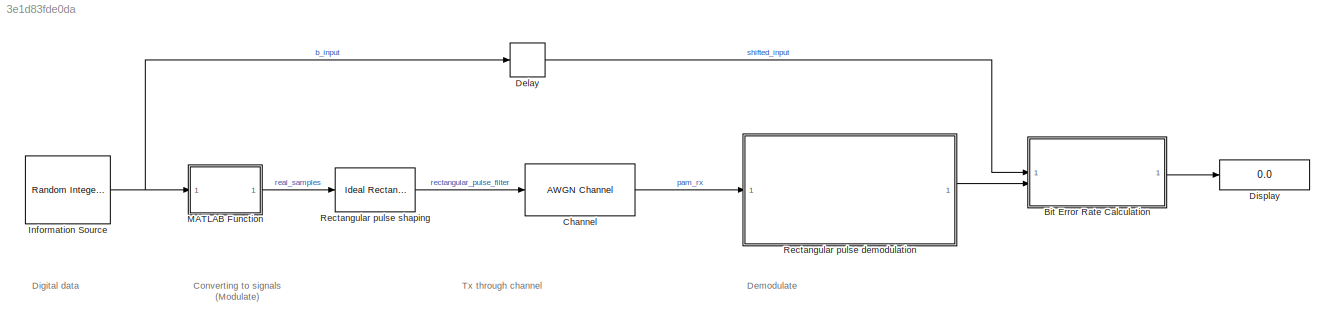
MODEL slx_3e1d83fde0da
KIND model
CONFIG AbsTol = auto
CONFIG EnableMultiTasking = off
CONFIG FixedStep = auto
CONFIG InitFcn = bps = 1; \nres = 50; 
CONFIG MaxStep = auto
CONFIG MinStep = auto
CONFIG RelTol = 1e-3
CONFIG SampleTimeConstraint = Unconstrained
CONFIG SolverName = VariableStepAuto
CONFIG StartTime = 0.0
CONFIG StopTime = 10000
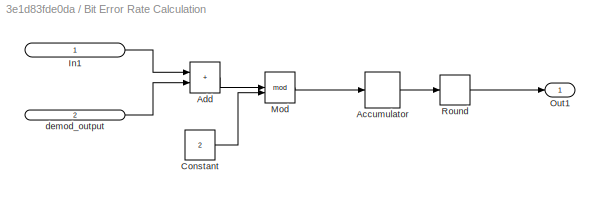
BLOCK [SubSystem] Bit Error Rate Calculation
BLOCK [DiscreteIntegrator] Bit Error Rate Calculation/Accumulator
  ICPrevOutput = DiscIntNeverNeededParam
  ICPrevScaledInput = DiscIntNeverNeededParam
  InitialConditionSetting = Auto
  IntegratorMethod = Accumulation: Forward Euler
  SampleTime = -1
BLOCK [Sum] Bit Error Rate Calculation/Add
  IconShape = rectangular
BLOCK [Constant] Bit Error Rate Calculation/Constant
  Value = 2
BLOCK [Inport] Bit Error Rate Calculation/In1
  IconDisplay = Signal name
BLOCK [Math] Bit Error Rate Calculation/Mod
  Operator = mod
BLOCK [Outport] Bit Error Rate Calculation/Out1
BLOCK [Rounding] Bit Error Rate Calculation/Round
  Operator = round
BLOCK [Inport] Bit Error Rate Calculation/demod_output
  Port = 2
BLOCK [Reference] Channel  REF=commchan3/AWGN
Channel
  SourceBlock = commchan3/AWGN\nChannel
  SourceType = AWGN Channel
BLOCK [Delay] Delay
  DelayLength = 1
  InputPortMap = u0
BLOCK [Display] Display
  Decimation = 1
BLOCK [Reference] Information Source   REF=commrandsrc3/Random Integer
Generator
  SourceBlock = commrandsrc3/Random Integer\nGenerator
  SourceType = Random Integer Generator
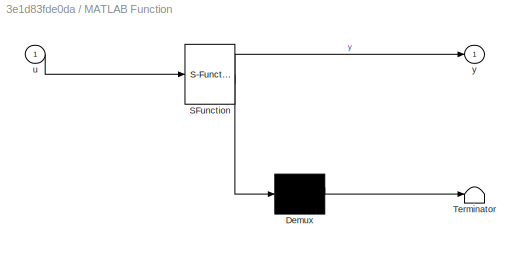
BLOCK [SubSystem] MATLAB Function
  ErrorFcn = Stateflow.Translate.translate
  LibrarySourceBlock = simulink/User-Defined\nFunctions/MATLAB Function
  PermitHierarchicalResolution = ExplicitOnly
  SFBlockType = MATLAB Function
  TreatAsAtomicUnit = on
BLOCK [Demux] MATLAB Function/ Demux 
  Outputs = 1
BLOCK [S-Function] MATLAB Function/ SFunction 
  EnableBusSupport = on
  FunctionName = sf_sfun
  PortCounts = [1 2]
  SFcnIsStateOwnerBlock = off
  SFunctionDeploymentMode = off
  Tag = Stateflow S-Function 2
BLOCK [Terminator] MATLAB Function/ Terminator 
BLOCK [Inport] MATLAB Function/u
BLOCK [Outport] MATLAB Function/y
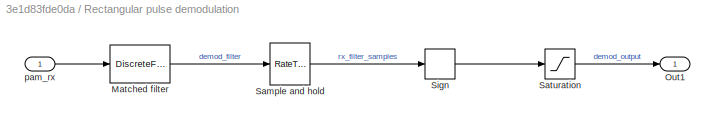
BLOCK [SubSystem] Rectangular pulse demodulation
BLOCK [DiscreteFir] Rectangular pulse demodulation/Matched filter
  Coefficients = (1/res)*[0,ones(1,res)]
  InputPortMap = u0
  OutputPortMap = o0
BLOCK [Outport] Rectangular pulse demodulation/Out1
BLOCK [RateTransition] Rectangular pulse demodulation/Sample and hold
  Deterministic = off
  OutPortSampleTime = bps
BLOCK [Saturate] Rectangular pulse demodulation/Saturation
  LowerLimit = 0
  UpperLimit = 1
BLOCK [Signum] Rectangular pulse demodulation/Sign
BLOCK [Inport] Rectangular pulse demodulation/pam_rx
BLOCK [Reference] Rectangular pulse shaping  REF=commfilt2/Ideal Rectangular
Pulse Filter
  SourceBlock = commfilt2/Ideal Rectangular\nPulse Filter
  SourceType = Ideal Rectangular Pulse Filter
  UserDataPersistent = on
ANNOTATION (root): Converting to signals (Modulate)
ANNOTATION (root): Demodulate
ANNOTATION (root): Digital data
ANNOTATION (root): Tx through channel
LINE Bit Error Rate Calculation/Accumulator:1 -> Bit Error Rate Calculation/Round:1
LINE Bit Error Rate Calculation/Add:1 -> Bit Error Rate Calculation/Mod:1
LINE Bit Error Rate Calculation/Constant:1 -> Bit Error Rate Calculation/Mod:2
LINE Bit Error Rate Calculation/In1:1 -> Bit Error Rate Calculation/Add:1
LINE Bit Error Rate Calculation/Mod:1 -> Bit Error Rate Calculation/Accumulator:1
LINE Bit Error Rate Calculation/Round:1 -> Bit Error Rate Calculation/Out1:1
LINE Bit Error Rate Calculation/demod_output:1 -> Bit Error Rate Calculation/Add:2
LINE Bit Error Rate Calculation:1 -> Display:1
LINE Channel:1 -> Rectangular pulse demodulation:1
LINE Delay:1 -> Bit Error Rate Calculation:1
NET Information Source :1 -> Delay:1, MATLAB Function:1
LINE MATLAB Function:1 -> Rectangular pulse shaping:1
LINE Rectangular pulse demodulation/Matched filter:1 -> Rectangular pulse demodulation/Sample and hold:1
LINE Rectangular pulse demodulation/Sample and hold:1 -> Rectangular pulse demodulation/Sign:1
LINE Rectangular pulse demodulation/Saturation:1 -> Rectangular pulse demodulation/Out1:1
LINE Rectangular pulse demodulation/Sign:1 -> Rectangular pulse demodulation/Saturation:1
LINE Rectangular pulse demodulation/pam_rx:1 -> Rectangular pulse demodulation/Matched filter:1
LINE Rectangular pulse demodulation:1 -> Bit Error Rate Calculation:2
LINE Rectangular pulse shaping:1 -> Channel:1
note: NET lines group one-source signal fan-out (src -> all destinations, sorted); 1:1 wires keep LINE
CHART MATLAB Function states=1 transitions=1
  STATE_LABEL 'eML_blk_kernel()'
  STATE_LABEL 'SCRIPT:\nfunction y = fcn(u)\n\ny = 2*u-1;\n'
CHART  states=0 transitions=0
